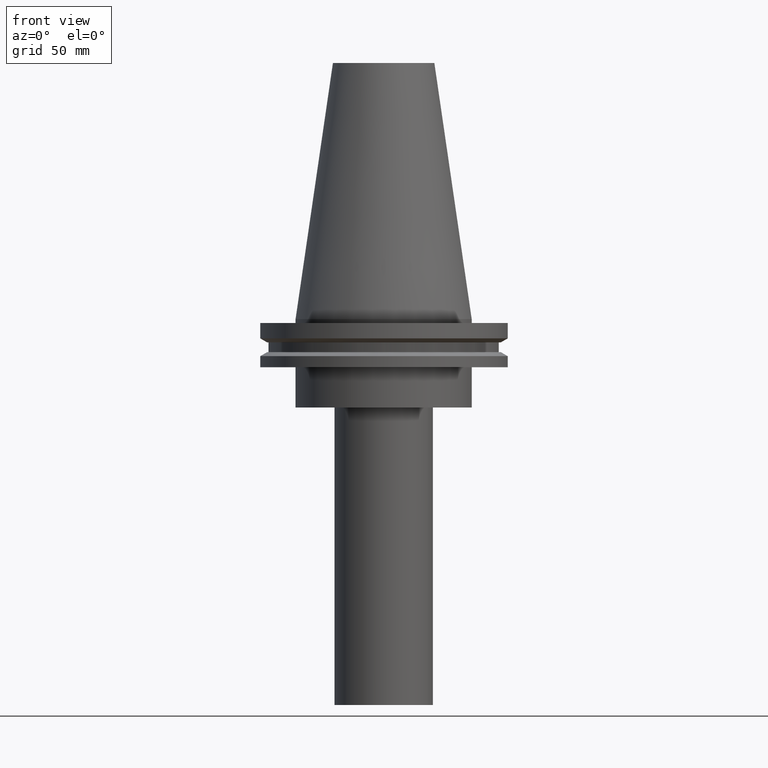
[diagram: clean part render]
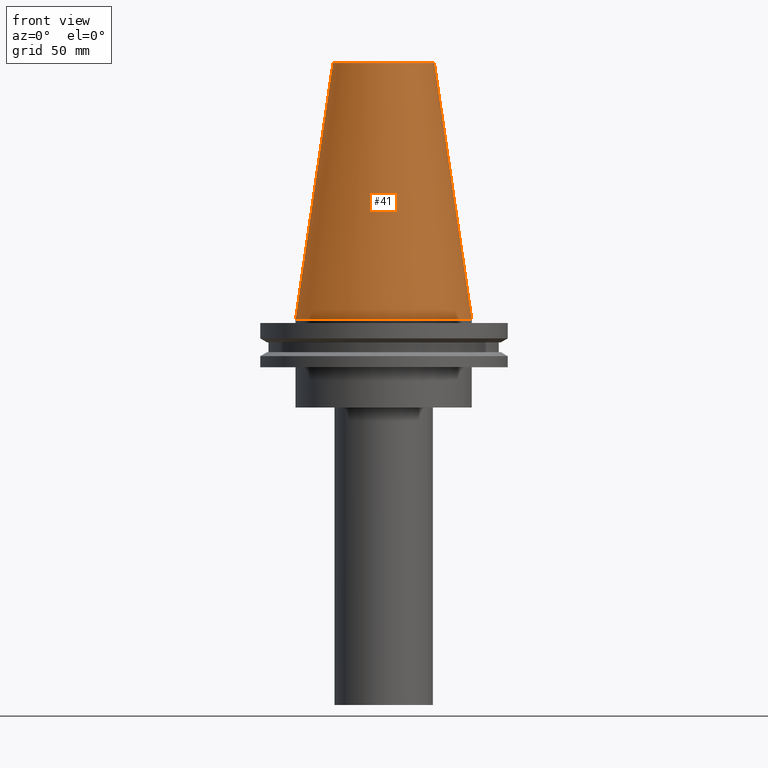
[diagram: same view with one face highlighted and labeled with its STEP entity id]
A machine part, front view. The second image highlights one B-rep face of the part: STEP entity #41.
In plain terms, the highlighted conical surface has half-angle 8.297 deg.
Its self-contained STEP definition (entity closure, byte-faithful):
#19 = ORIENTED_EDGE ( 'NONE', *, *, #285, .T. ) ;
#41 = ADVANCED_FACE ( 'NONE', ( #213, #55 ), #72, .T. ) ;
#43 = CIRCLE ( 'NONE', #144, 20.10819343178871321 ) ;
#45 = ORIENTED_EDGE ( 'NONE', *, *, #58, .F. ) ;
#55 = FACE_OUTER_BOUND ( 'NONE', #130, .T. ) ;
#58 = EDGE_CURVE ( 'NONE', #246, #246, #43, .T. ) ;
#72 = CONICAL_SURFACE ( 'NONE', #94, 34.92499999999999005, 0.1448138465474119452 ) ;
#93 = DIRECTION ( 'NONE',  ( -0.000000000000000000, -0.000000000000000000, 1.000000000000000000 ) ) ;
#94 = AXIS2_PLACEMENT_3D ( 'NONE', #291, #179, #371 ) ;
#96 = CARTESIAN_POINT ( 'NONE',  ( 0.000000000000000000, 0.000000000000000000, 101.5999999999999801 ) ) ;
#130 = EDGE_LOOP ( 'NONE', ( #19 ) ) ;
#132 = CIRCLE ( 'NONE', #241, 34.92499999999999005 ) ;
#144 = AXIS2_PLACEMENT_3D ( 'NONE', #96, #93, #305 ) ;
#147 = VERTEX_POINT ( 'NONE', #276 ) ;
#179 = DIRECTION ( 'NONE',  ( 0.000000000000000000, 0.000000000000000000, -1.000000000000000000 ) ) ;
#213 = FACE_BOUND ( 'NONE', #215, .T. ) ;
#215 = EDGE_LOOP ( 'NONE', ( #45 ) ) ;
#237 = DIRECTION ( 'NONE',  ( -0.000000000000000000, -0.000000000000000000, 1.000000000000000000 ) ) ;
#241 = AXIS2_PLACEMENT_3D ( 'NONE', #380, #237, #355 ) ;
#246 = VERTEX_POINT ( 'NONE', #274 ) ;
#274 = CARTESIAN_POINT ( 'NONE',  ( 20.10819343178871321, 0.000000000000000000, 101.5999999999999801 ) ) ;
#276 = CARTESIAN_POINT ( 'NONE',  ( 34.92499999999999005, 0.000000000000000000, 0.000000000000000000 ) ) ;
#285 = EDGE_CURVE ( 'NONE', #147, #147, #132, .T. ) ;
#291 = CARTESIAN_POINT ( 'NONE',  ( 0.000000000000000000, 0.000000000000000000, 0.000000000000000000 ) ) ;
#305 = DIRECTION ( 'NONE',  ( 1.000000000000000000, 0.000000000000000000, 0.000000000000000000 ) ) ;
#355 = DIRECTION ( 'NONE',  ( 1.000000000000000000, 0.000000000000000000, 0.000000000000000000 ) ) ;
#371 = DIRECTION ( 'NONE',  ( -1.000000000000000000, 0.000000000000000000, 0.000000000000000000 ) ) ;
#380 = CARTESIAN_POINT ( 'NONE',  ( 0.000000000000000000, 0.000000000000000000, 0.000000000000000000 ) ) ;